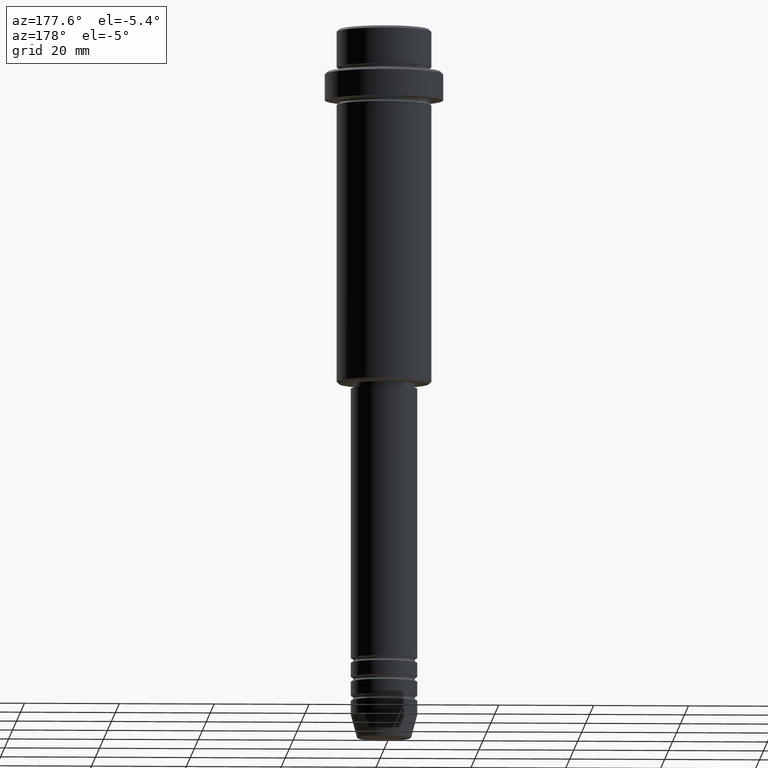
[diagram: clean part render]
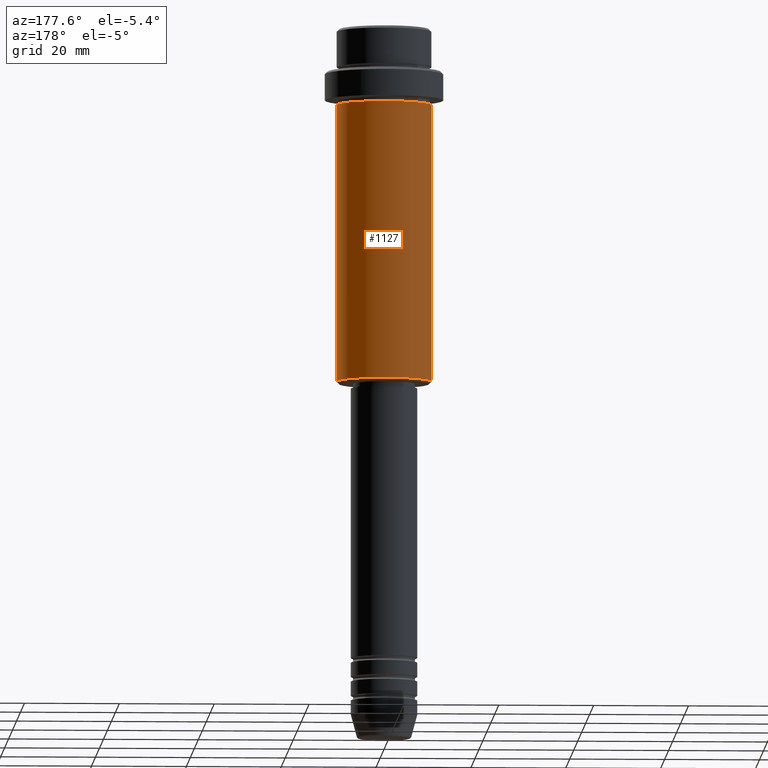
[diagram: same view with one face highlighted and labeled with its STEP entity id]
A machine part, auxiliary view. The second image highlights one B-rep face of the part: STEP entity #1127.
In plain terms, the highlighted cylindrical surface (partial cylindrical patch) has radius 10 mm, axis along (-0, -0, 1).
Its self-contained STEP definition (entity closure, byte-faithful):
#66 = EDGE_CURVE ( 'NONE', #899, #1042, #723, .T. ) ;
#166 = CIRCLE ( 'NONE', #397, 10.00000000000000000 ) ;
#180 = DIRECTION ( 'NONE',  ( -0.000000000000000000, -0.000000000000000000, 1.000000000000000000 ) ) ;
#181 = DIRECTION ( 'NONE',  ( -0.000000000000000000, -0.000000000000000000, 1.000000000000000000 ) ) ;
#194 = DIRECTION ( 'NONE',  ( -0.000000000000000000, -0.000000000000000000, 1.000000000000000000 ) ) ;
#239 = VERTEX_POINT ( 'NONE', #864 ) ;
#318 = ORIENTED_EDGE ( 'NONE', *, *, #66, .T. ) ;
#339 = FACE_OUTER_BOUND ( 'NONE', #534, .T. ) ;
#352 = CARTESIAN_POINT ( 'NONE',  ( 10.00000000000000000, 0.000000000000000000, -74.50000000000001421 ) ) ;
#397 = AXIS2_PLACEMENT_3D ( 'NONE', #943, #181, #1283 ) ;
#410 = CARTESIAN_POINT ( 'NONE',  ( 10.00000000000000000, 0.000000000000000000, 0.000000000000000000 ) ) ;
#445 = AXIS2_PLACEMENT_3D ( 'NONE', #1225, #775, #1014 ) ;
#448 = EDGE_CURVE ( 'NONE', #1227, #899, #1120, .T. ) ;
#475 = EDGE_CURVE ( 'NONE', #1227, #239, #1092, .T. ) ;
#534 = EDGE_LOOP ( 'NONE', ( #694, #318, #822, #862 ) ) ;
#597 = AXIS2_PLACEMENT_3D ( 'NONE', #1176, #180, #1382 ) ;
#623 = CARTESIAN_POINT ( 'NONE',  ( -10.00000000000000000, 1.224646799147353256E-15, -74.50000000000001421 ) ) ;
#643 = CARTESIAN_POINT ( 'NONE',  ( -10.00000000000000000, 1.224646799147353256E-15, 0.000000000000000000 ) ) ;
#694 = ORIENTED_EDGE ( 'NONE', *, *, #448, .T. ) ;
#723 = LINE ( 'NONE', #643, #1070 ) ;
#775 = DIRECTION ( 'NONE',  ( -0.000000000000000000, -0.000000000000000000, 1.000000000000000000 ) ) ;
#786 = CYLINDRICAL_SURFACE ( 'NONE', #445, 10.00000000000000000 ) ;
#822 = ORIENTED_EDGE ( 'NONE', *, *, #1366, .F. ) ;
#862 = ORIENTED_EDGE ( 'NONE', *, *, #475, .F. ) ;
#864 = CARTESIAN_POINT ( 'NONE',  ( 10.00000000000000000, 0.000000000000000000, -16.00000000000000000 ) ) ;
#887 = CARTESIAN_POINT ( 'NONE',  ( -10.00000000000000000, 1.224646799147353256E-15, -16.00000000000000000 ) ) ;
#899 = VERTEX_POINT ( 'NONE', #623 ) ;
#943 = CARTESIAN_POINT ( 'NONE',  ( 0.000000000000000000, 0.000000000000000000, -16.00000000000000000 ) ) ;
#1014 = DIRECTION ( 'NONE',  ( 1.000000000000000000, 0.000000000000000000, 0.000000000000000000 ) ) ;
#1042 = VERTEX_POINT ( 'NONE', #887 ) ;
#1051 = VECTOR ( 'NONE', #1193, 1000.000000000000000 ) ;
#1070 = VECTOR ( 'NONE', #194, 1000.000000000000000 ) ;
#1092 = LINE ( 'NONE', #410, #1051 ) ;
#1120 = CIRCLE ( 'NONE', #597, 10.00000000000000000 ) ;
#1127 = ADVANCED_FACE ( 'NONE', ( #339 ), #786, .T. ) ;
#1176 = CARTESIAN_POINT ( 'NONE',  ( 0.000000000000000000, 0.000000000000000000, -74.50000000000001421 ) ) ;
#1193 = DIRECTION ( 'NONE',  ( -0.000000000000000000, -0.000000000000000000, 1.000000000000000000 ) ) ;
#1225 = CARTESIAN_POINT ( 'NONE',  ( 0.000000000000000000, 0.000000000000000000, 0.000000000000000000 ) ) ;
#1227 = VERTEX_POINT ( 'NONE', #352 ) ;
#1283 = DIRECTION ( 'NONE',  ( 1.000000000000000000, 0.000000000000000000, 0.000000000000000000 ) ) ;
#1366 = EDGE_CURVE ( 'NONE', #239, #1042, #166, .T. ) ;
#1382 = DIRECTION ( 'NONE',  ( -1.000000000000000000, 0.000000000000000000, 0.000000000000000000 ) ) ;